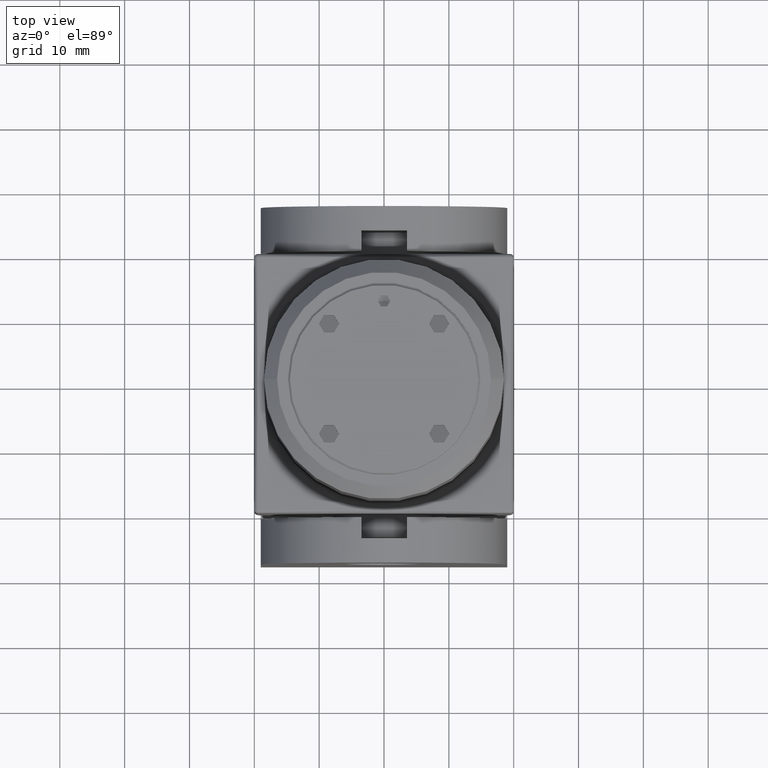
[diagram: clean part render]
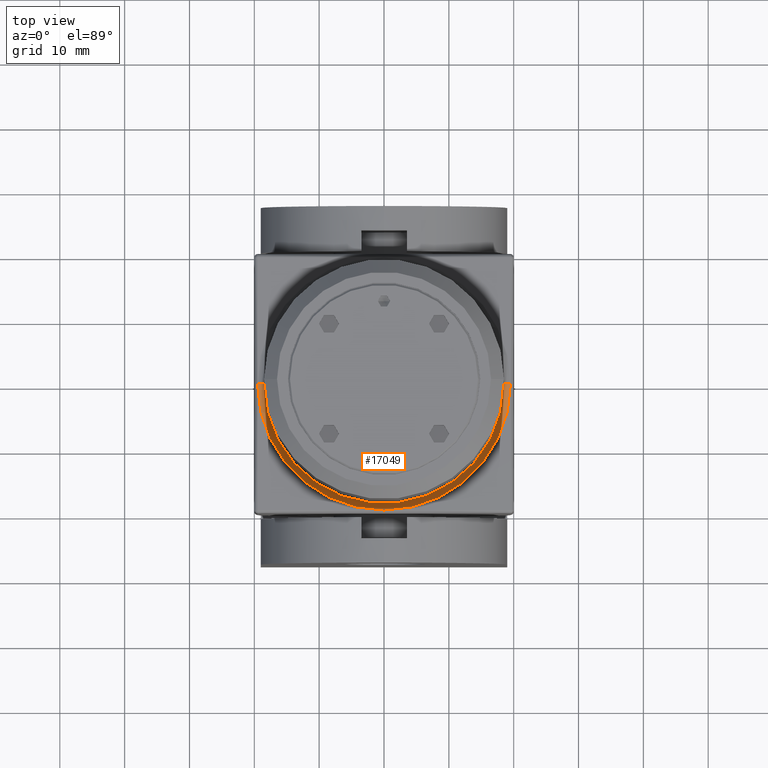
[diagram: same view with one face highlighted and labeled with its STEP entity id]
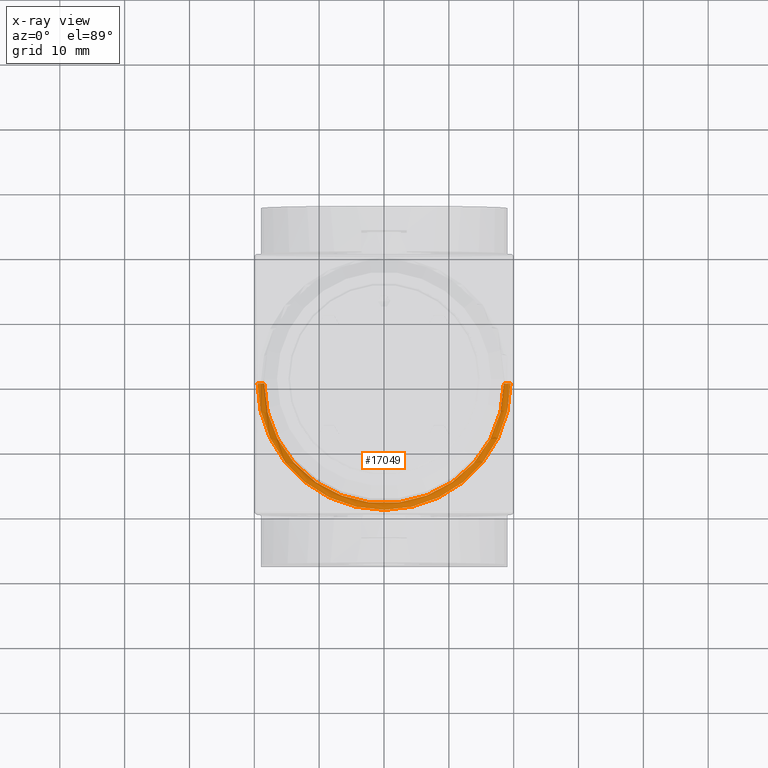
[diagram: x-ray of the same camera — body ghosted, the highlighted face saturated]
A machine part, top view. The second image highlights one B-rep face of the part: STEP entity #17049.
The next image is the same camera in x-ray: the body ghosted, the highlighted face saturated — about 0% of this face is hidden behind the body in this view.
In plain terms, the highlighted toroidal blend (fillet) surface has major radius 19.5 mm and minor (blend) radius 1 mm.
Its self-contained STEP definition (entity closure, byte-faithful):
#1246 = CARTESIAN_POINT ( 'NONE',  ( 19.50000000000000000, 0.000000000000000000, 0.000000000000000000 ) ) ;
#1351 = EDGE_CURVE ( 'NONE', #5087, #3942, #15735, .T. ) ;
#1586 = FACE_OUTER_BOUND ( 'NONE', #11870, .T. ) ;
#1915 = ORIENTED_EDGE ( 'NONE', *, *, #7776, .F. ) ;
#2062 = VERTEX_POINT ( 'NONE', #1246 ) ;
#2343 = DIRECTION ( 'NONE',  ( 0.000000000000000000, 0.000000000000000000, -1.000000000000000000 ) ) ;
#2385 = AXIS2_PLACEMENT_3D ( 'NONE', #2554, #18167, #7152 ) ;
#2554 = CARTESIAN_POINT ( 'NONE',  ( 0.000000000000000000, 0.000000000000000000, 0.000000000000000000 ) ) ;
#3942 = VERTEX_POINT ( 'NONE', #12056 ) ;
#4312 = CARTESIAN_POINT ( 'NONE',  ( 18.50000000000000000, 2.265596578422603396E-15, 1.000000000000000888 ) ) ;
#4457 = AXIS2_PLACEMENT_3D ( 'NONE', #11855, #2343, #14894 ) ;
#5087 = VERTEX_POINT ( 'NONE', #13750 ) ;
#5276 = VERTEX_POINT ( 'NONE', #12558 ) ;
#5688 = CARTESIAN_POINT ( 'NONE',  ( 19.50000000000000000, 2.388061258337338939E-15, 1.000000000000000888 ) ) ;
#5811 = ORIENTED_EDGE ( 'NONE', *, *, #6349, .T. ) ;
#6349 = EDGE_CURVE ( 'NONE', #2062, #16122, #15447, .T. ) ;
#6561 = EDGE_CURVE ( 'NONE', #5276, #16122, #15939, .T. ) ;
#7152 = DIRECTION ( 'NONE',  ( -1.000000000000000000, 0.000000000000000000, 0.000000000000000000 ) ) ;
#7317 = AXIS2_PLACEMENT_3D ( 'NONE', #12533, #12471, #9161 ) ;
#7410 = ORIENTED_EDGE ( 'NONE', *, *, #1351, .F. ) ;
#7776 = EDGE_CURVE ( 'NONE', #3942, #5276, #9459, .T. ) ;
#8061 = CARTESIAN_POINT ( 'NONE',  ( 0.000000000000000000, 0.000000000000000000, 0.000000000000000000 ) ) ;
#9129 = DIRECTION ( 'NONE',  ( -1.000000000000000000, 0.000000000000000000, 0.000000000000000000 ) ) ;
#9161 = DIRECTION ( 'NONE',  ( 0.000000000000000000, 0.000000000000000000, -1.000000000000000000 ) ) ;
#9459 = CIRCLE ( 'NONE', #7317, 1.000000000000000000 ) ;
#9558 = AXIS2_PLACEMENT_3D ( 'NONE', #15233, #10525, #9129 ) ;
#9876 = DIRECTION ( 'NONE',  ( -1.000000000000000000, 0.000000000000000000, 0.000000000000000000 ) ) ;
#9990 = EDGE_CURVE ( 'NONE', #2062, #5087, #15765, .T. ) ;
#10525 = DIRECTION ( 'NONE',  ( -0.000000000000000000, -0.000000000000000000, 1.000000000000000000 ) ) ;
#11855 = CARTESIAN_POINT ( 'NONE',  ( 0.000000000000000000, 0.000000000000000000, 1.000000000000000888 ) ) ;
#11870 = EDGE_LOOP ( 'NONE', ( #15357, #5811, #13133, #1915, #7410 ) ) ;
#12056 = CARTESIAN_POINT ( 'NONE',  ( -19.50000000000000000, 0.000000000000000000, 0.000000000000000000 ) ) ;
#12471 = DIRECTION ( 'NONE',  ( -0.000000000000000000, -1.000000000000000000, -0.000000000000000000 ) ) ;
#12533 = CARTESIAN_POINT ( 'NONE',  ( -19.50000000000000000, 0.000000000000000000, 1.000000000000000888 ) ) ;
#12558 = CARTESIAN_POINT ( 'NONE',  ( -18.50000000000000000, 0.000000000000000000, 1.000000000000000888 ) ) ;
#12787 = AXIS2_PLACEMENT_3D ( 'NONE', #8061, #14645, #9876 ) ;
#13133 = ORIENTED_EDGE ( 'NONE', *, *, #6561, .F. ) ;
#13750 = CARTESIAN_POINT ( 'NONE',  ( 0.000000000000000000, -19.50000000000000000, 0.000000000000000000 ) ) ;
#14645 = DIRECTION ( 'NONE',  ( 0.000000000000000000, 0.000000000000000000, -1.000000000000000000 ) ) ;
#14894 = DIRECTION ( 'NONE',  ( -1.000000000000000000, 0.000000000000000000, 0.000000000000000000 ) ) ;
#15027 = DIRECTION ( 'NONE',  ( -1.224646799147353207E-16, 1.000000000000000000, 0.000000000000000000 ) ) ;
#15233 = CARTESIAN_POINT ( 'NONE',  ( 0.000000000000000000, 0.000000000000000000, 1.000000000000000888 ) ) ;
#15357 = ORIENTED_EDGE ( 'NONE', *, *, #9990, .F. ) ;
#15447 = CIRCLE ( 'NONE', #17383, 1.000000000000000888 ) ;
#15735 = CIRCLE ( 'NONE', #2385, 19.50000000000000000 ) ;
#15765 = CIRCLE ( 'NONE', #12787, 19.50000000000000000 ) ;
#15939 = CIRCLE ( 'NONE', #9558, 18.50000000000000000 ) ;
#16122 = VERTEX_POINT ( 'NONE', #4312 ) ;
#16407 = TOROIDAL_SURFACE ( 'NONE', #4457, 19.50000000000000000, 1.000000000000000000 ) ;
#17049 = ADVANCED_FACE ( 'NONE', ( #1586 ), #16407, .F. ) ;
#17383 = AXIS2_PLACEMENT_3D ( 'NONE', #5688, #15027, #17726 ) ;
#17726 = DIRECTION ( 'NONE',  ( -1.000000000000000000, -1.224646799147353454E-16, 0.000000000000000000 ) ) ;
#18167 = DIRECTION ( 'NONE',  ( 0.000000000000000000, 0.000000000000000000, -1.000000000000000000 ) ) ;